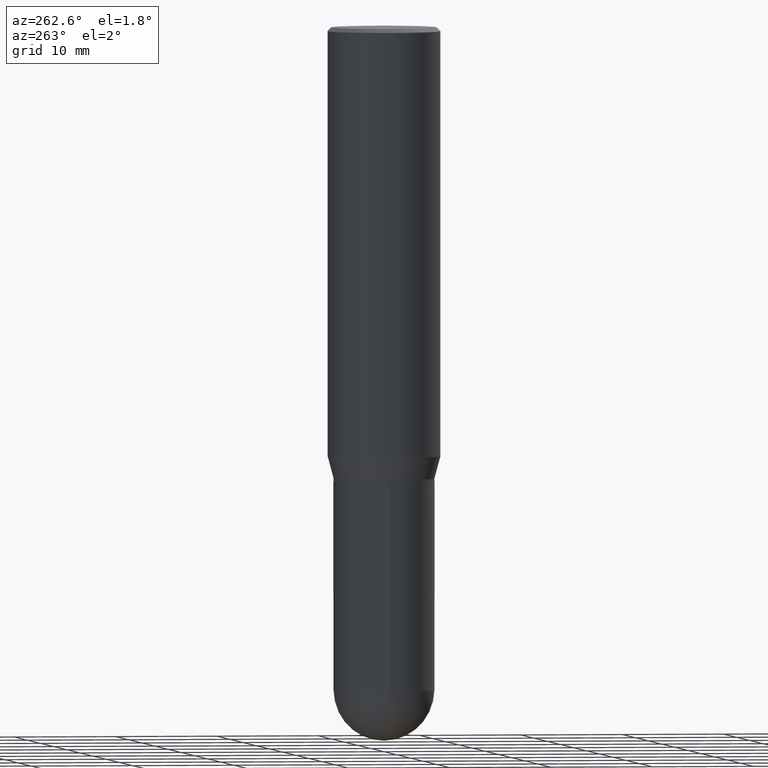
[diagram: clean part render]
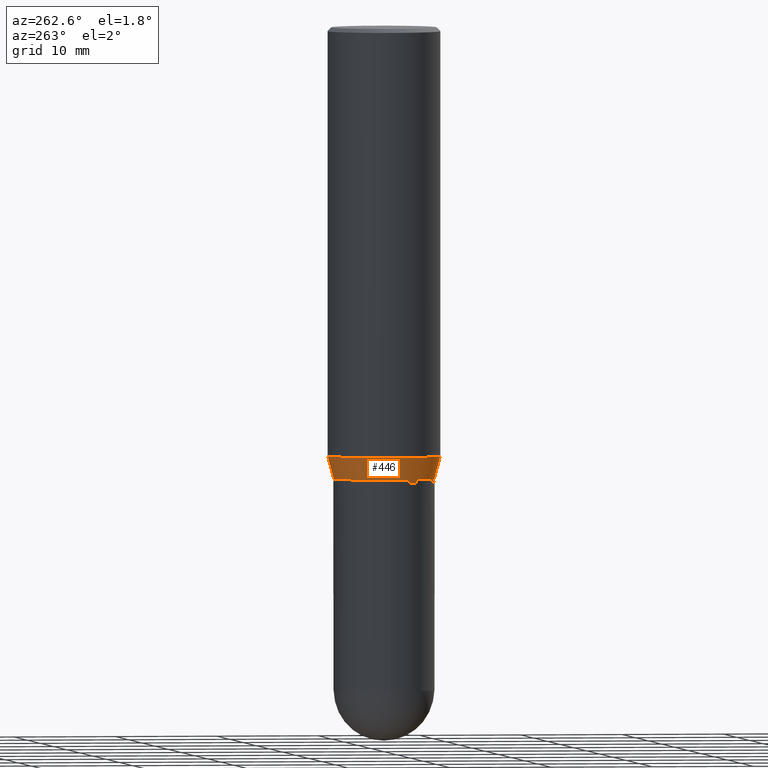
[diagram: same view with one face highlighted and labeled with its STEP entity id]
A machine part, auxiliary view. The second image highlights one B-rep face of the part: STEP entity #446.
In plain terms, the highlighted conical surface has half-angle 15 deg.
Its self-contained STEP definition (entity closure, byte-faithful):
#7 = AXIS2_PLACEMENT_3D ( 'NONE', #249, #449, #50 ) ;
#18 = CARTESIAN_POINT ( 'NONE',  ( -1.363772610952084702E-15, -0.1953000000000059688, -1.739999999999999547 ) ) ;
#24 = EDGE_LOOP ( 'NONE', ( #495, #217, #312, #297 ) ) ;
#50 = DIRECTION ( 'NONE',  ( -6.982962677686265133E-15, -1.000000000000000000, 3.746534391310989557E-15 ) ) ;
#51 = LINE ( 'NONE', #323, #295 ) ;
#85 = CARTESIAN_POINT ( 'NONE',  ( -1.527523085743830414E-15, -0.2187500000000058009, -1.652483408562509082 ) ) ;
#92 = CONICAL_SURFACE ( 'NONE', #470, 0.1952999999999998904, 0.2617993877991504625 ) ;
#96 = DIRECTION ( 'NONE',  ( -1.807323732225331323E-15, -0.2588190451025183525, 0.9659258262890689783 ) ) ;
#97 = VECTOR ( 'NONE', #96, 39.37007874015748854 ) ;
#109 = DIRECTION ( 'NONE',  ( -2.445224538422357859E-29, 3.491831144182302259E-15, 1.000000000000000000 ) ) ;
#133 = CARTESIAN_POINT ( 'NONE',  ( -1.363772610952084702E-15, -0.1953000000000059688, -1.739999999999999547 ) ) ;
#140 = CARTESIAN_POINT ( 'NONE',  ( 4.254690696854903488E-29, -6.075786190877206191E-15, -1.739999999999999991 ) ) ;
#149 = VERTEX_POINT ( 'NONE', #85 ) ;
#152 = DIRECTION ( 'NONE',  ( -6.982962677686266711E-15, -1.000000000000000000, 2.797591391361254348E-15 ) ) ;
#184 = CARTESIAN_POINT ( 'NONE',  ( 1.471001098707388140E-15, 0.1952999999999938119, -1.740000000000000657 ) ) ;
#213 = VERTEX_POINT ( 'NONE', #18 ) ;
#217 = ORIENTED_EDGE ( 'NONE', *, *, #411, .T. ) ;
#249 = CARTESIAN_POINT ( 'NONE',  ( 4.040692979952868380E-29, -5.770193031263100651E-15, -1.652483408562509748 ) ) ;
#251 = CIRCLE ( 'NONE', #344, 0.1952999999999998904 ) ;
#264 = CIRCLE ( 'NONE', #7, 0.2187500000000000000 ) ;
#269 = DIRECTION ( 'NONE',  ( -2.445224538422357859E-29, 3.491831144182302259E-15, 1.000000000000000000 ) ) ;
#290 = EDGE_CURVE ( 'NONE', #213, #149, #409, .T. ) ;
#295 = VECTOR ( 'NONE', #488, 39.37007874015748854 ) ;
#297 = ORIENTED_EDGE ( 'NONE', *, *, #325, .F. ) ;
#312 = ORIENTED_EDGE ( 'NONE', *, *, #290, .T. ) ;
#323 = CARTESIAN_POINT ( 'NONE',  ( 1.387689962939517088E-15, 0.1952999999999938119, -1.740000000000000657 ) ) ;
#325 = EDGE_CURVE ( 'NONE', #393, #149, #264, .T. ) ;
#341 = DIRECTION ( 'NONE',  ( -6.982962677686266711E-15, -1.000000000000000000, 2.797591391361254348E-15 ) ) ;
#344 = AXIS2_PLACEMENT_3D ( 'NONE', #140, #109, #341 ) ;
#355 = EDGE_CURVE ( 'NONE', #412, #393, #51, .T. ) ;
#367 = CARTESIAN_POINT ( 'NONE',  ( 1.554312234475258797E-15, 0.2187499999999941713, -1.652483408562510636 ) ) ;
#375 = FACE_OUTER_BOUND ( 'NONE', #24, .T. ) ;
#378 = CARTESIAN_POINT ( 'NONE',  ( 4.254690696854903488E-29, -6.075786190877206191E-15, -1.739999999999999991 ) ) ;
#393 = VERTEX_POINT ( 'NONE', #367 ) ;
#409 = LINE ( 'NONE', #133, #97 ) ;
#411 = EDGE_CURVE ( 'NONE', #412, #213, #251, .T. ) ;
#412 = VERTEX_POINT ( 'NONE', #184 ) ;
#446 = ADVANCED_FACE ( 'NONE', ( #375 ), #92, .T. ) ;
#449 = DIRECTION ( 'NONE',  ( -2.445224538422357859E-29, 3.491831144182302259E-15, 1.000000000000000000 ) ) ;
#470 = AXIS2_PLACEMENT_3D ( 'NONE', #378, #269, #152 ) ;
#488 = DIRECTION ( 'NONE',  ( 1.839019923739601499E-15, 0.2588190451025251249, 0.9659258262890670910 ) ) ;
#495 = ORIENTED_EDGE ( 'NONE', *, *, #355, .F. ) ;